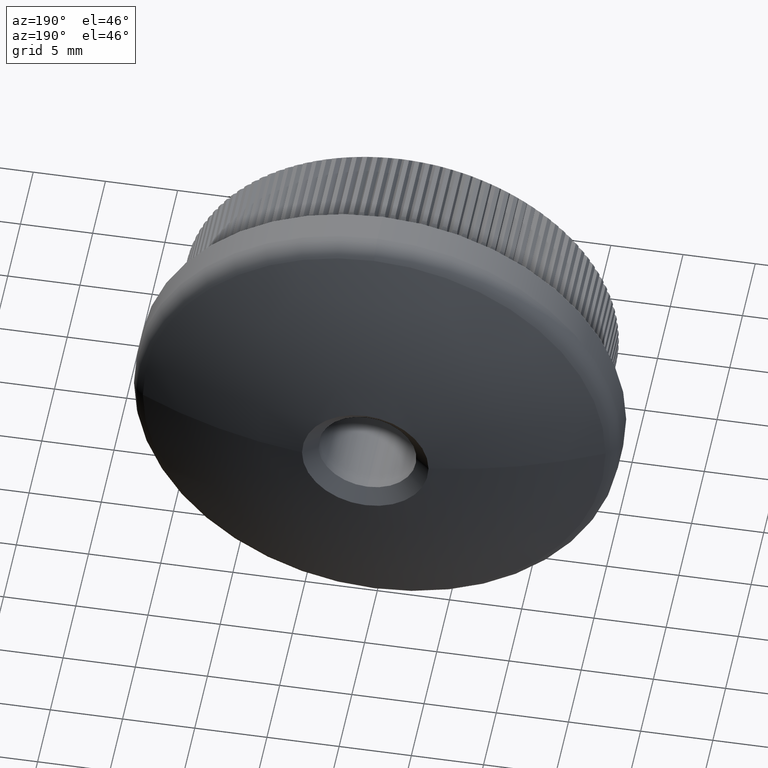
[diagram: clean part render]
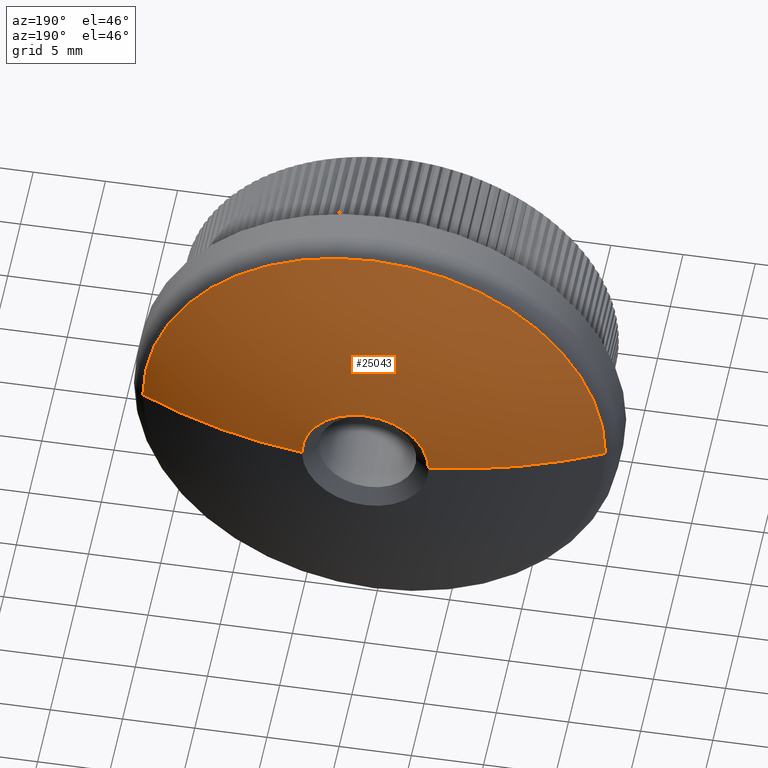
[diagram: same view with one face highlighted and labeled with its STEP entity id]
A machine part, auxiliary view. The second image highlights one B-rep face of the part: STEP entity #25043.
In plain terms, the highlighted spherical surface has radius 35.9003 mm.
Its self-contained STEP definition (entity closure, byte-faithful):
#1294 = EDGE_CURVE ( 'NONE', #24358, #8851, #10077, .T. ) ;
#2464 = CARTESIAN_POINT ( 'NONE',  ( 0.0000000000000000000, -20.90029761904771300, 0.0000000000000000000 ) ) ;
#2865 = EDGE_CURVE ( 'NONE', #8851, #10219, #15795, .T. ) ;
#3014 = ORIENTED_EDGE ( 'NONE', *, *, #9099, .T. ) ;
#3314 = CARTESIAN_POINT ( 'NONE',  ( 0.0000000000000000000, 14.73171883667769000, 0.0000000000000000000 ) ) ;
#3368 = DIRECTION ( 'NONE',  ( 0.0000000000000000000, 1.000000000000000000, 0.0000000000000000000 ) ) ;
#3782 = AXIS2_PLACEMENT_3D ( 'NONE', #24823, #4118, #8188 ) ;
#4118 = DIRECTION ( 'NONE',  ( 1.224646799147353200E-016, -0.0000000000000000000, 1.000000000000000000 ) ) ;
#4705 = AXIS2_PLACEMENT_3D ( 'NONE', #2464, #24890, #21138 ) ;
#5298 = CARTESIAN_POINT ( 'NONE',  ( -16.01932560453345300, 11.22776762478764600, 1.961801582609113400E-015 ) ) ;
#5831 = CIRCLE ( 'NONE', #22211, 16.01932560453346000 ) ;
#6333 = DIRECTION ( 'NONE',  ( 1.000000000000000000, 0.0000000000000000000, 0.0000000000000000000 ) ) ;
#8188 = DIRECTION ( 'NONE',  ( 1.000000000000000000, 0.0000000000000000000, -1.224646799147353200E-016 ) ) ;
#8440 = CARTESIAN_POINT ( 'NONE',  ( 0.0000000000000000000, -20.90029761904771300, 0.0000000000000000000 ) ) ;
#8851 = VERTEX_POINT ( 'NONE', #10762 ) ;
#9099 = EDGE_CURVE ( 'NONE', #11336, #24751, #14781, .T. ) ;
#9159 = DIRECTION ( 'NONE',  ( -0.0000000000000000000, -1.000000000000000000, -0.0000000000000000000 ) ) ;
#9673 = CARTESIAN_POINT ( 'NONE',  ( 0.0000000000000000000, 11.22776762478764600, 0.0000000000000000000 ) ) ;
#10001 = VERTEX_POINT ( 'NONE', #16718 ) ;
#10077 = CIRCLE ( 'NONE', #25070, 4.380727386532452500 ) ;
#10219 = VERTEX_POINT ( 'NONE', #5298 ) ;
#10503 = CARTESIAN_POINT ( 'NONE',  ( 0.0000000000000000000, 14.73171883667769000, 0.0000000000000000000 ) ) ;
#10762 = CARTESIAN_POINT ( 'NONE',  ( -4.380727386532452500, 14.73171883667769000, 1.249142979897262600E-015 ) ) ;
#11252 = CIRCLE ( 'NONE', #17152, 4.380727386532452500 ) ;
#11336 = VERTEX_POINT ( 'NONE', #22170 ) ;
#12073 = EDGE_CURVE ( 'NONE', #10001, #24751, #19839, .T. ) ;
#13292 = DIRECTION ( 'NONE',  ( 0.0000000000000000000, 0.0000000000000000000, -1.000000000000000000 ) ) ;
#14781 = CIRCLE ( 'NONE', #20875, 16.01932560453346000 ) ;
#14784 = DIRECTION ( 'NONE',  ( 0.0000000000000000000, 0.0000000000000000000, -1.000000000000000000 ) ) ;
#15551 = CARTESIAN_POINT ( 'NONE',  ( 16.01932560453345300, 11.22776762478764600, 0.0000000000000000000 ) ) ;
#15795 = CIRCLE ( 'NONE', #3782, 35.90029761904770600 ) ;
#15812 = EDGE_LOOP ( 'NONE', ( #17566, #19930, #23872, #20362, #3014, #25752 ) ) ;
#16698 = CARTESIAN_POINT ( 'NONE',  ( 0.0000000000000000000, 11.22776762478764600, 0.0000000000000000000 ) ) ;
#16718 = CARTESIAN_POINT ( 'NONE',  ( 4.380727386532452500, 14.73171883667769000, 0.0000000000000000000 ) ) ;
#16813 = DIRECTION ( 'NONE',  ( -0.0000000000000000000, -1.000000000000000000, -0.0000000000000000000 ) ) ;
#17152 = AXIS2_PLACEMENT_3D ( 'NONE', #10503, #16813, #18920 ) ;
#17566 = ORIENTED_EDGE ( 'NONE', *, *, #25053, .T. ) ;
#18920 = DIRECTION ( 'NONE',  ( 0.0000000000000000000, 0.0000000000000000000, -1.000000000000000000 ) ) ;
#19839 = CIRCLE ( 'NONE', #4705, 35.90029761904770600 ) ;
#19930 = ORIENTED_EDGE ( 'NONE', *, *, #1294, .T. ) ;
#20362 = ORIENTED_EDGE ( 'NONE', *, *, #21963, .T. ) ;
#20377 = AXIS2_PLACEMENT_3D ( 'NONE', #8440, #22747, #6333 ) ;
#20776 = DIRECTION ( 'NONE',  ( 0.0000000000000000000, 1.000000000000000000, 0.0000000000000000000 ) ) ;
#20875 = AXIS2_PLACEMENT_3D ( 'NONE', #16698, #20776, #14784 ) ;
#21138 = DIRECTION ( 'NONE',  ( -1.000000000000000000, 0.0000000000000000000, 0.0000000000000000000 ) ) ;
#21746 = DIRECTION ( 'NONE',  ( 0.0000000000000000000, 0.0000000000000000000, -1.000000000000000000 ) ) ;
#21963 = EDGE_CURVE ( 'NONE', #10219, #11336, #5831, .T. ) ;
#22170 = CARTESIAN_POINT ( 'NONE',  ( 2.012665719586202600E-015, 11.22776762478764600, 16.01932560453346000 ) ) ;
#22211 = AXIS2_PLACEMENT_3D ( 'NONE', #9673, #3368, #21746 ) ;
#22747 = DIRECTION ( 'NONE',  ( 0.0000000000000000000, 0.0000000000000000000, 1.000000000000000000 ) ) ;
#22763 = FACE_OUTER_BOUND ( 'NONE', #15812, .T. ) ;
#23872 = ORIENTED_EDGE ( 'NONE', *, *, #2865, .T. ) ;
#24358 = VERTEX_POINT ( 'NONE', #25853 ) ;
#24751 = VERTEX_POINT ( 'NONE', #15551 ) ;
#24823 = CARTESIAN_POINT ( 'NONE',  ( 0.0000000000000000000, -20.90029761904771300, 0.0000000000000000000 ) ) ;
#24890 = DIRECTION ( 'NONE',  ( 0.0000000000000000000, 0.0000000000000000000, -1.000000000000000000 ) ) ;
#25006 = SPHERICAL_SURFACE ( 'NONE', #20377, 35.90029761904770600 ) ;
#25043 = ADVANCED_FACE ( 'NONE', ( #22763 ), #25006, .T. ) ;
#25053 = EDGE_CURVE ( 'NONE', #10001, #24358, #11252, .T. ) ;
#25070 = AXIS2_PLACEMENT_3D ( 'NONE', #3314, #9159, #13292 ) ;
#25752 = ORIENTED_EDGE ( 'NONE', *, *, #12073, .F. ) ;
#25853 = CARTESIAN_POINT ( 'NONE',  ( 0.0000000000000000000, 14.73171883667769000, 4.380727386532436500 ) ) ;